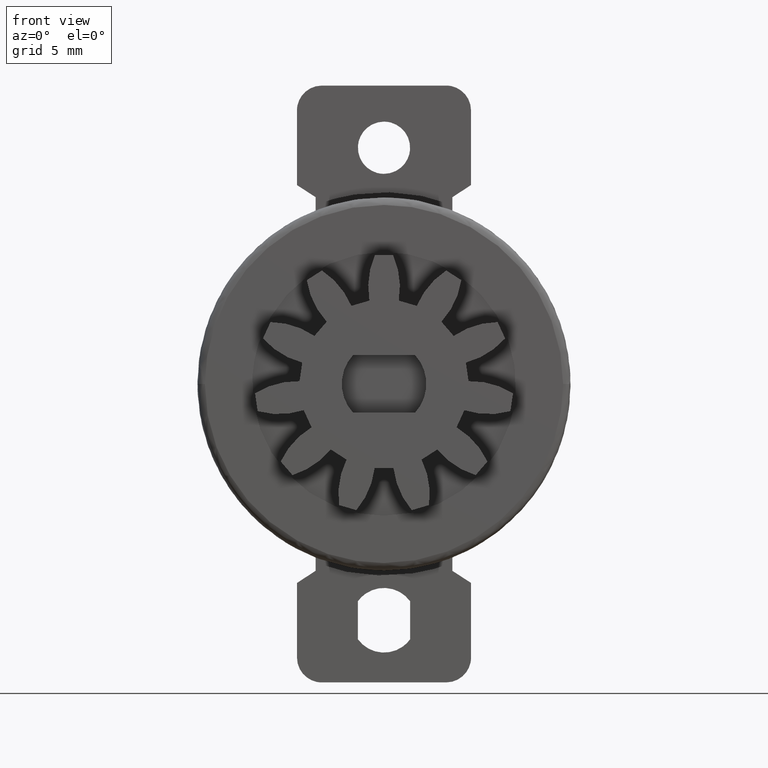
[diagram: clean part render]
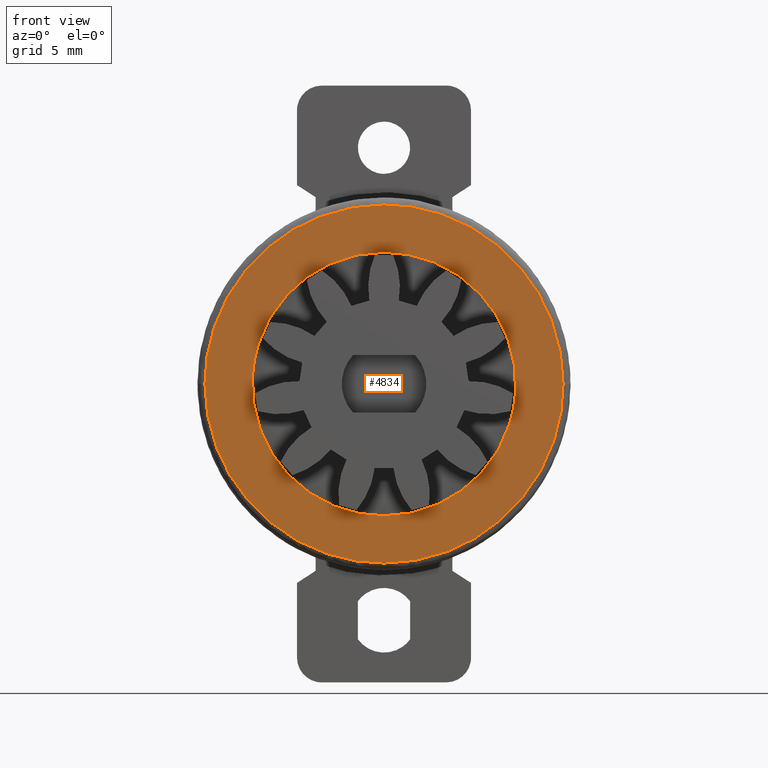
[diagram: same view with one face highlighted and labeled with its STEP entity id]
A machine part, front view. The second image highlights one B-rep face of the part: STEP entity #4834.
In plain terms, the highlighted face is a freeform B-spline surface patch.
Its self-contained STEP definition (entity closure, byte-faithful):
#4628=CARTESIAN_POINT('',(0.0,-3.400000000000000,7.200000000000000));
#4629=VERTEX_POINT('',#4628);
#4630=CARTESIAN_POINT('',(-7.200000000118919,-3.400000000000000,-5.084947E-016));
#4631=VERTEX_POINT('',#4630);
#4632=CARTESIAN_POINT('',(0.0,-3.400000000000000,7.200000000000000));
#4633=CARTESIAN_POINT('',(-7.200000000059462,-3.400000000000001,7.200000000000000));
#4634=CARTESIAN_POINT('',(-7.200000000118919,-3.400000000000000,-5.084947E-016));
#4642=(BOUNDED_CURVE()B_SPLINE_CURVE(2,(#4632,#4633,#4634),.UNSPECIFIED.,.F.,.U.)B_SPLINE_CURVE_WITH_KNOTS((3,3),(0.0,0.250000000000000),.UNSPECIFIED.)CURVE()GEOMETRIC_REPRESENTATION_ITEM()RATIONAL_B_SPLINE_CURVE((1.0,0.707106781186547,1.0))REPRESENTATION_ITEM(''));
#4643=EDGE_CURVE('',#4629,#4631,#4642,.T.);
#4645=CARTESIAN_POINT('',(7.200000000118919,-3.400000000000000,6.587210E-017));
#4646=VERTEX_POINT('',#4645);
#4647=CARTESIAN_POINT('',(7.200000000118919,-3.400000000000000,6.587210E-017));
#4648=CARTESIAN_POINT('',(7.200000000059462,-3.400000000000001,7.200000000000000));
#4649=CARTESIAN_POINT('',(0.0,-3.400000000000000,7.200000000000000));
#4657=(BOUNDED_CURVE()B_SPLINE_CURVE(2,(#4647,#4648,#4649),.UNSPECIFIED.,.F.,.U.)B_SPLINE_CURVE_WITH_KNOTS((3,3),(0.750000000000000,1.0),.UNSPECIFIED.)CURVE()GEOMETRIC_REPRESENTATION_ITEM()RATIONAL_B_SPLINE_CURVE((1.0,0.707106781186547,1.0))REPRESENTATION_ITEM(''));
#4658=EDGE_CURVE('',#4646,#4629,#4657,.T.);
#4721=CARTESIAN_POINT('',(0.0,-3.400000000000000,-7.200000000000000));
#4722=VERTEX_POINT('',#4721);
#4723=CARTESIAN_POINT('',(-7.200000000118919,-3.400000000000000,-5.084947E-016));
#4724=CARTESIAN_POINT('',(-7.200000000059462,-3.400000000000001,-7.200000000000000));
#4725=CARTESIAN_POINT('',(0.0,-3.400000000000000,-7.200000000000000));
#4733=(BOUNDED_CURVE()B_SPLINE_CURVE(2,(#4723,#4724,#4725),.UNSPECIFIED.,.F.,.U.)B_SPLINE_CURVE_WITH_KNOTS((3,3),(0.250000000000000,0.500000000000000),.UNSPECIFIED.)CURVE()GEOMETRIC_REPRESENTATION_ITEM()RATIONAL_B_SPLINE_CURVE((1.0,0.707106781186547,1.0))REPRESENTATION_ITEM(''));
#4734=EDGE_CURVE('',#4631,#4722,#4733,.T.);
#4741=CARTESIAN_POINT('',(0.0,-3.400000000000000,-7.200000000000000));
#4742=CARTESIAN_POINT('',(7.200000000059462,-3.400000000000001,-7.200000000000000));
#4743=CARTESIAN_POINT('',(7.200000000118919,-3.400000000000000,6.587210E-017));
#4751=(BOUNDED_CURVE()B_SPLINE_CURVE(2,(#4741,#4742,#4743),.UNSPECIFIED.,.F.,.U.)B_SPLINE_CURVE_WITH_KNOTS((3,3),(0.500000000000000,0.750000000000000),.UNSPECIFIED.)CURVE()GEOMETRIC_REPRESENTATION_ITEM()RATIONAL_B_SPLINE_CURVE((1.0,0.707106781186547,1.0))REPRESENTATION_ITEM(''));
#4752=EDGE_CURVE('',#4722,#4646,#4751,.T.);
#4757=CARTESIAN_POINT('',(-7.919279972220806,-3.400000000000000,7.919279972090006));
#4758=CARTESIAN_POINT('',(7.919280358458904,-3.400000000000000,7.919279972090006));
#4759=CARTESIAN_POINT('',(-7.919279972220806,-3.400000000000000,-7.919280358328105));
#4760=CARTESIAN_POINT('',(7.919280358458904,-3.400000000000000,-7.919280358328105));
#4761=B_SPLINE_SURFACE_WITH_KNOTS('',1,1,((#4757,#4759),(#4758,#4760)),.UNSPECIFIED.,.F.,.F.,.U.,(2,2),(2,2),(0.0,15.838560330679710),(0.0,15.838560330418110),.UNSPECIFIED.);
#4762=ORIENTED_EDGE('',*,*,#4643,.T.);
#4763=ORIENTED_EDGE('',*,*,#4734,.T.);
#4764=ORIENTED_EDGE('',*,*,#4752,.T.);
#4765=ORIENTED_EDGE('',*,*,#4658,.T.);
#4766=EDGE_LOOP('',(#4762,#4763,#4764,#4765));
#4767=FACE_OUTER_BOUND('',#4766,.T.);
#4768=CARTESIAN_POINT('',(0.0,-3.399999999999960,-5.300000000000000));
#4769=VERTEX_POINT('',#4768);
#4770=CARTESIAN_POINT('',(5.290114947085359,-3.399999999999107,-0.323548831790155));
#4771=VERTEX_POINT('',#4770);
#4772=CARTESIAN_POINT('',(0.0,-3.399999999999960,-5.300000000000000));
#4773=CARTESIAN_POINT('',(4.985750112290177,-3.399999999999532,-5.299999999999794));
#4774=CARTESIAN_POINT('',(5.290114947085359,-3.399999999999106,-0.323548831790155));
#4782=(BOUNDED_CURVE()B_SPLINE_CURVE(2,(#4772,#4773,#4774),.UNSPECIFIED.,.F.,.U.)B_SPLINE_CURVE_WITH_KNOTS((3,3),(0.500000000000000,0.739333237128380),.UNSPECIFIED.)CURVE()GEOMETRIC_REPRESENTATION_ITEM()RATIONAL_B_SPLINE_CURVE((1.0,0.719603671233703,0.976072630807816))REPRESENTATION_ITEM(''));
#4783=EDGE_CURVE('',#4769,#4771,#4782,.T.);
#4784=ORIENTED_EDGE('',*,*,#4783,.F.);
#4785=CARTESIAN_POINT('',(-5.290114947085359,-3.399999999999107,0.323548831790155));
#4786=VERTEX_POINT('',#4785);
#4787=CARTESIAN_POINT('',(-5.290114947085359,-3.399999999999107,0.323548831790155));
#4788=CARTESIAN_POINT('',(-5.299999999993384,-3.399999999999119,0.161925419795050));
#4789=CARTESIAN_POINT('',(-5.299999999993486,-3.399999999999133,-3.979580E-013));
#4790=CARTESIAN_POINT('',(-5.299999999996842,-3.399999999999559,-5.300000000000192));
#4791=CARTESIAN_POINT('',(0.0,-3.399999999999960,-5.300000000000000));
#4799=(BOUNDED_CURVE()B_SPLINE_CURVE(2,(#4787,#4788,#4789,#4790,#4791),.UNSPECIFIED.,.F.,.U.)B_SPLINE_CURVE_WITH_KNOTS((3,2,3),(0.239333237128380,0.250000000000000,0.500000000000000),.UNSPECIFIED.)CURVE()GEOMETRIC_REPRESENTATION_ITEM()RATIONAL_B_SPLINE_CURVE((0.976072630807816,0.987503109952845,1.0,0.707106781186548,1.0))REPRESENTATION_ITEM(''));
#4800=EDGE_CURVE('',#4786,#4769,#4799,.T.);
#4801=ORIENTED_EDGE('',*,*,#4800,.F.);
#4802=CARTESIAN_POINT('',(0.0,-3.399999999999960,5.300000000000000));
#4803=VERTEX_POINT('',#4802);
#4804=CARTESIAN_POINT('',(0.0,-3.399999999999960,5.300000000000000));
#4805=CARTESIAN_POINT('',(-4.985750112290178,-3.399999999999533,5.299999999999796));
#4806=CARTESIAN_POINT('',(-5.290114947085359,-3.399999999999107,0.323548831790155));
#4814=(BOUNDED_CURVE()B_SPLINE_CURVE(2,(#4804,#4805,#4806),.UNSPECIFIED.,.F.,.U.)B_SPLINE_CURVE_WITH_KNOTS((3,3),(0.0,0.239333237128380),.UNSPECIFIED.)CURVE()GEOMETRIC_REPRESENTATION_ITEM()RATIONAL_B_SPLINE_CURVE((1.0,0.719603671233702,0.976072630807816))REPRESENTATION_ITEM(''));
#4815=EDGE_CURVE('',#4803,#4786,#4814,.T.);
#4816=ORIENTED_EDGE('',*,*,#4815,.F.);
#4817=CARTESIAN_POINT('',(5.290114947085359,-3.399999999999106,-0.323548831790155));
#4818=CARTESIAN_POINT('',(5.299999999993383,-3.399999999999119,-0.161925419795049));
#4819=CARTESIAN_POINT('',(5.299999999993485,-3.399999999999132,3.992508E-013));
#4820=CARTESIAN_POINT('',(5.299999999996842,-3.399999999999559,5.300000000000193));
#4821=CARTESIAN_POINT('',(0.0,-3.399999999999960,5.300000000000000));
#4829=(BOUNDED_CURVE()B_SPLINE_CURVE(2,(#4817,#4818,#4819,#4820,#4821),.UNSPECIFIED.,.F.,.U.)B_SPLINE_CURVE_WITH_KNOTS((3,2,3),(0.739333237128380,0.750000000000000,1.0),.UNSPECIFIED.)CURVE()GEOMETRIC_REPRESENTATION_ITEM()RATIONAL_B_SPLINE_CURVE((0.976072630807816,0.987503109952845,1.0,0.707106781186548,1.0))REPRESENTATION_ITEM(''));
#4830=EDGE_CURVE('',#4771,#4803,#4829,.T.);
#4831=ORIENTED_EDGE('',*,*,#4830,.F.);
#4832=EDGE_LOOP('',(#4784,#4801,#4816,#4831));
#4833=FACE_BOUND('',#4832,.T.);
#4834=ADVANCED_FACE('',(#4767,#4833),#4761,.F.);